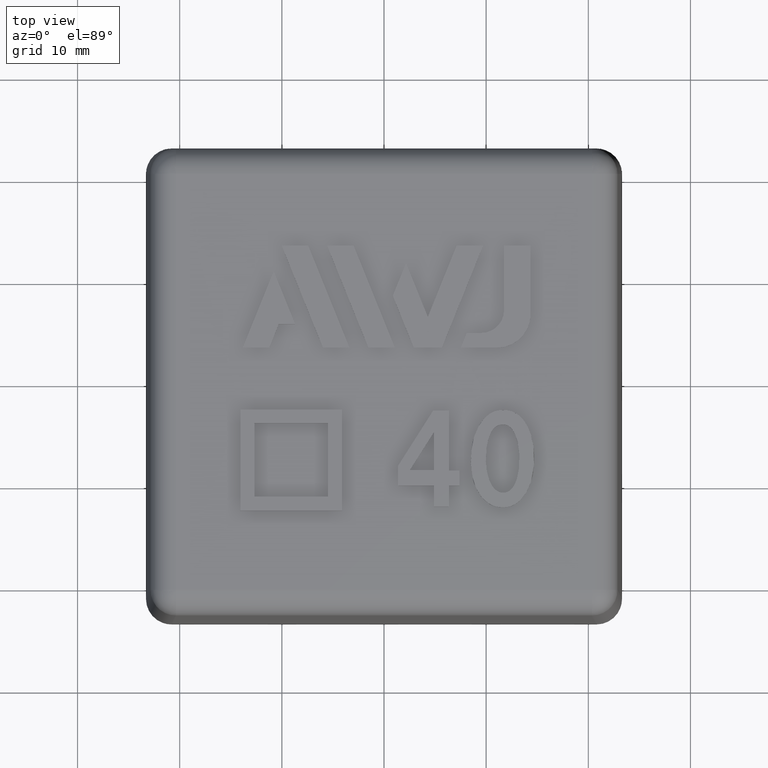
[diagram: clean part render]
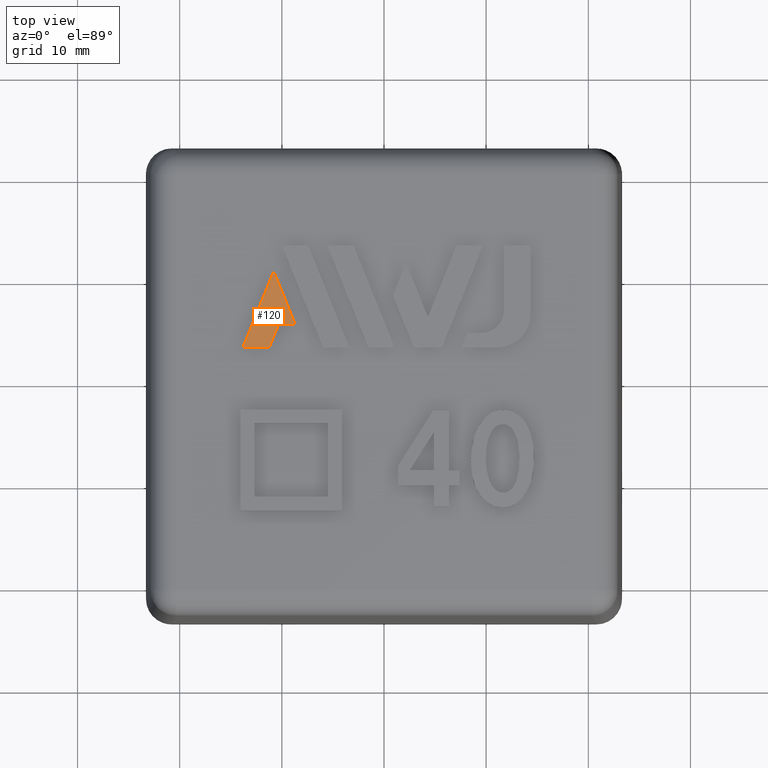
[diagram: same view with one face highlighted and labeled with its STEP entity id]
A machine part, top view. The second image highlights one B-rep face of the part: STEP entity #120.
In plain terms, the highlighted planar face has unit normal (0, 0, 1).
Its self-contained STEP definition (entity closure, byte-faithful):
#120 = ADVANCED_FACE( '', ( #266 ), #267, .T. );
#266 = FACE_OUTER_BOUND( '', #454, .T. );
#267 = PLANE( '', #455 );
#454 = EDGE_LOOP( '', ( #935, #936, #937, #938, #939 ) );
#455 = AXIS2_PLACEMENT_3D( '', #940, #941, #942 );
#935 = ORIENTED_EDGE( '', *, *, #1368, .T. );
#936 = ORIENTED_EDGE( '', *, *, #1369, .T. );
#937 = ORIENTED_EDGE( '', *, *, #1370, .T. );
#938 = ORIENTED_EDGE( '', *, *, #1371, .T. );
#939 = ORIENTED_EDGE( '', *, *, #1372, .T. );
#940 = CARTESIAN_POINT( '', ( 353.391284081979, 134.816099886284, 27.8335000000000 ) );
#941 = DIRECTION( '', ( 0.000000000000000, 6.12303176911189E-017, 1.00000000000000 ) );
#942 = DIRECTION( '', ( -1.00000000000000, 0.000000000000000, 0.000000000000000 ) );
#1368 = EDGE_CURVE( '', #1674, #1675, #1676, .T. );
#1369 = EDGE_CURVE( '', #1675, #1677, #1678, .T. );
#1370 = EDGE_CURVE( '', #1677, #1679, #1680, .T. );
#1371 = EDGE_CURVE( '', #1679, #1681, #1682, .T. );
#1372 = EDGE_CURVE( '', #1681, #1674, #1683, .T. );
#1674 = VERTEX_POINT( '', #2239 );
#1675 = VERTEX_POINT( '', #2240 );
#1676 = LINE( '', #2241, #2242 );
#1677 = VERTEX_POINT( '', #2243 );
#1678 = LINE( '', #2244, #2245 );
#1679 = VERTEX_POINT( '', #2246 );
#1680 = LINE( '', #2247, #2248 );
#1681 = VERTEX_POINT( '', #2249 );
#1682 = LINE( '', #2250, #2251 );
#1683 = LINE( '', #2252, #2253 );
#2239 = CARTESIAN_POINT( '', ( -10.8017197420200, 10.7966439852850, 27.8335000000000 ) );
#2240 = CARTESIAN_POINT( '', ( -13.8314227298000, 3.29689874999999, 27.8335000000000 ) );
#2241 = CARTESIAN_POINT( '', ( -10.8017197420200, 10.7966439852850, 27.8335000000000 ) );
#2242 = VECTOR( '', #2502, 1000.00000000000 );
#2243 = CARTESIAN_POINT( '', ( -11.2474151033325, 3.29689874999999, 27.8335000000000 ) );
#2244 = CARTESIAN_POINT( '', ( -13.8314227298000, 3.29689874999999, 27.8335000000000 ) );
#2245 = VECTOR( '', #2503, 1000.00000000000 );
#2246 = CARTESIAN_POINT( '', ( -10.3133395056025, 5.60713614476000, 27.8335000000000 ) );
#2247 = CARTESIAN_POINT( '', ( -11.2474151033325, 3.29689874999999, 27.8335000000000 ) );
#2248 = VECTOR( '', #2504, 1000.00000000000 );
#2249 = CARTESIAN_POINT( '', ( -8.70599113972252, 5.60713614476000, 27.8335000000000 ) );
#2250 = CARTESIAN_POINT( '', ( -10.3133395056025, 5.60713614476000, 27.8335000000000 ) );
#2251 = VECTOR( '', #2505, 1000.00000000000 );
#2252 = CARTESIAN_POINT( '', ( -8.70599113972253, 5.60713614476000, 27.8335000000000 ) );
#2253 = VECTOR( '', #2506, 1000.00000000000 );
#2502 = DIRECTION( '', ( -0.374565060835224, -0.927200633736574, 5.67727893670972E-017 ) );
#2503 = DIRECTION( '', ( 1.00000000000000, 0.000000000000000, 0.000000000000000 ) );
#2504 = DIRECTION( '', ( 0.374840859640758, 0.927089170438194, -5.67659644339264E-017 ) );
#2505 = DIRECTION( '', ( 1.00000000000000, 0.000000000000000, 0.000000000000000 ) );
#2506 = DIRECTION( '', ( -0.374457798873769, 0.927243957576760, -5.67754420995954E-017 ) );